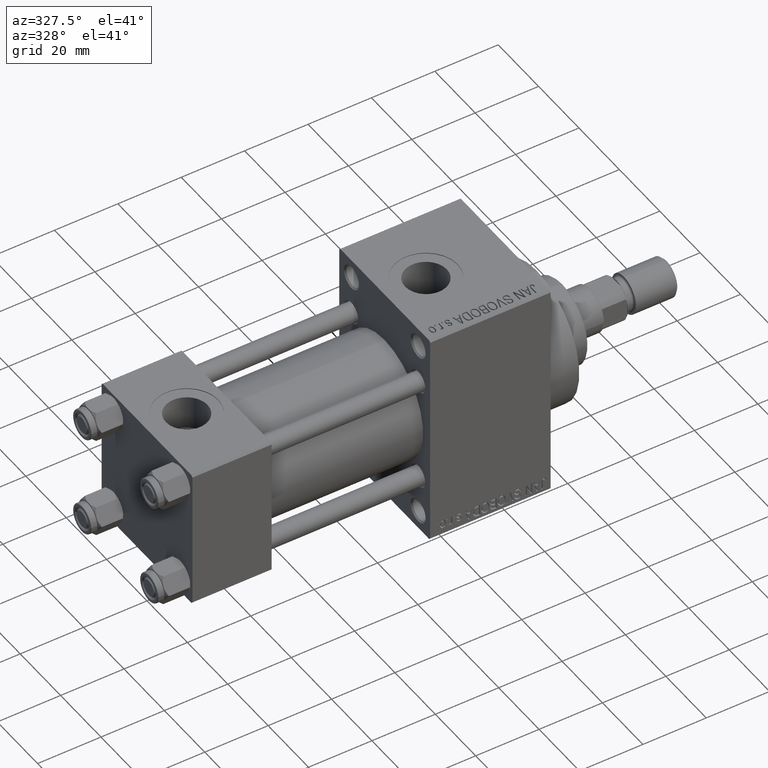
[diagram: clean part render]
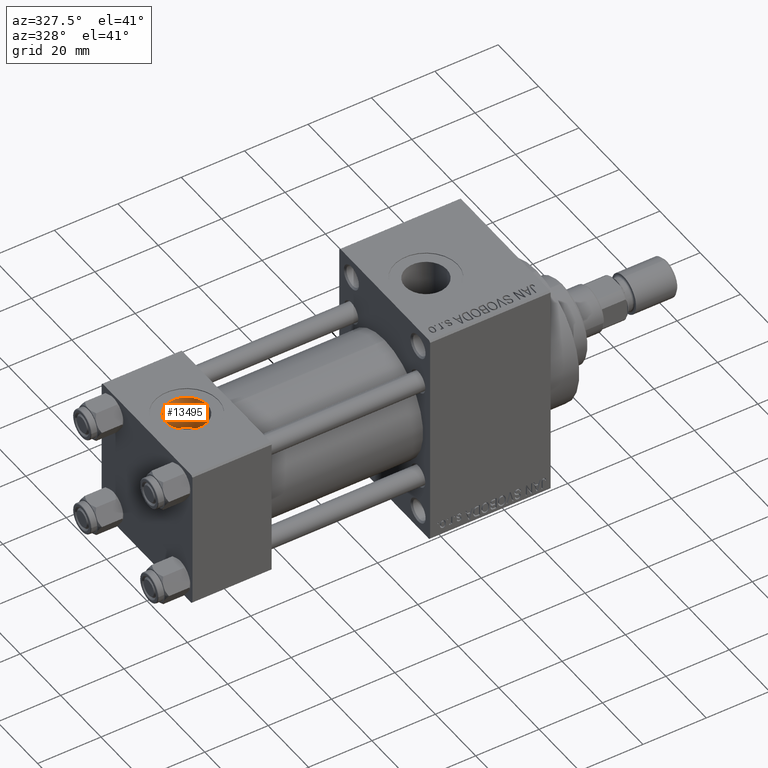
[diagram: same view with one face highlighted and labeled with its STEP entity id]
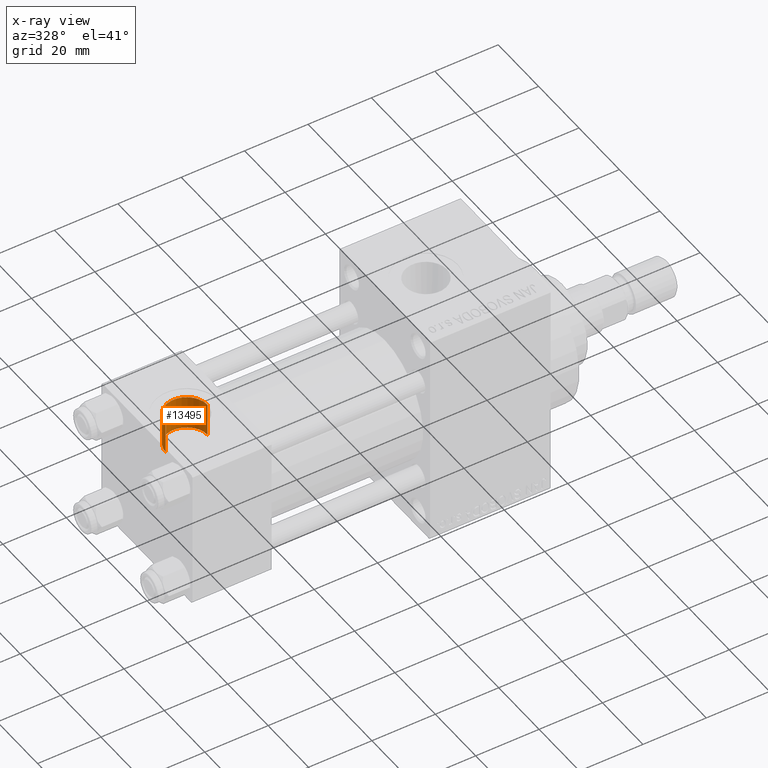
[diagram: x-ray of the same camera — body ghosted, the highlighted face saturated]
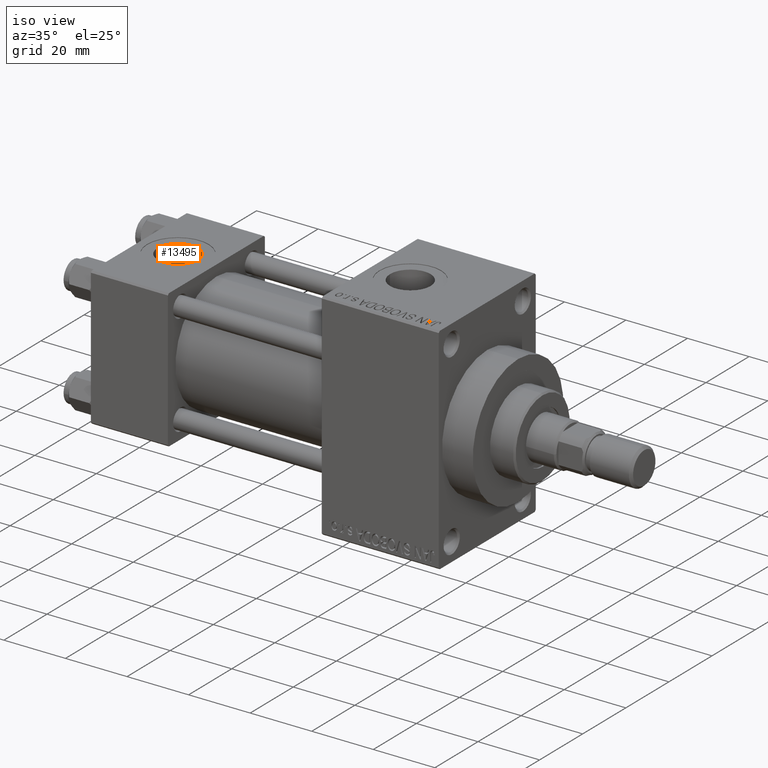
[diagram: same view with one face highlighted and labeled with its STEP entity id]
A machine part, auxiliary view. The second image highlights one B-rep face of the part: STEP entity #13495.
The next image is the same camera in x-ray: the body ghosted, the highlighted face saturated — about 0% of this face is hidden behind the body in this view.
A second angle (iso view) of the same face is appended — the face is thin or edge-on in the first view.
In plain terms, the highlighted cylindrical surface (edge-blend (fillet) strip) has radius 6.58 mm, axis along (0, 0, 1).
Its self-contained STEP definition (entity closure, byte-faithful):
#335 = DIRECTION ( 'NONE',  ( -0.000000000000000000, -0.000000000000000000, 1.000000000000000000 ) ) ;
#2559 = DIRECTION ( 'NONE',  ( -0.000000000000000000, -0.000000000000000000, -1.000000000000000000 ) ) ;
#3282 = DIRECTION ( 'NONE',  ( 1.000000000000000000, 0.000000000000000000, 0.000000000000000000 ) ) ;
#3398 = VERTEX_POINT ( 'NONE', #26870 ) ;
#6330 = CARTESIAN_POINT ( 'NONE',  ( 12.50000000000000000, -1.734723475976807094E-15, 11.66598726114649409 ) ) ;
#7382 = VERTEX_POINT ( 'NONE', #37924 ) ;
#7443 = VERTEX_POINT ( 'NONE', #28289 ) ;
#8065 = ORIENTED_EDGE ( 'NONE', *, *, #32889, .T. ) ;
#8501 = DIRECTION ( 'NONE',  ( -0.000000000000000000, -0.000000000000000000, 1.000000000000000000 ) ) ;
#8738 = ORIENTED_EDGE ( 'NONE', *, *, #26054, .T. ) ;
#9303 = CIRCLE ( 'NONE', #15729, 6.579999999999999183 ) ;
#10083 = CYLINDRICAL_SURFACE ( 'NONE', #29956, 6.579999999999999183 ) ;
#10237 = ORIENTED_EDGE ( 'NONE', *, *, #46598, .T. ) ;
#10331 = DIRECTION ( 'NONE',  ( -0.000000000000000000, -0.000000000000000000, 1.000000000000000000 ) ) ;
#10437 = AXIS2_PLACEMENT_3D ( 'NONE', #6330, #2559, #14110 ) ;
#13495 = ADVANCED_FACE ( 'NONE', ( #14852 ), #10083, .F. ) ;
#14110 = DIRECTION ( 'NONE',  ( 1.000000000000000000, 0.000000000000000000, 0.000000000000000000 ) ) ;
#14852 = FACE_OUTER_BOUND ( 'NONE', #44900, .T. ) ;
#15082 = DIRECTION ( 'NONE',  ( 0.000000000000000000, 0.000000000000000000, 1.000000000000000000 ) ) ;
#15729 = AXIS2_PLACEMENT_3D ( 'NONE', #49427, #15082, #3282 ) ;
#18506 = CARTESIAN_POINT ( 'NONE',  ( 5.920000000000002593, -9.289058821378490386E-16, 11.66598726114649409 ) ) ;
#19607 = VECTOR ( 'NONE', #8501, 1000.000000000000000 ) ;
#22097 = DIRECTION ( 'NONE',  ( 1.000000000000000000, 0.000000000000000000, 0.000000000000000000 ) ) ;
#22556 = EDGE_CURVE ( 'NONE', #23263, #3398, #30630, .T. ) ;
#23263 = VERTEX_POINT ( 'NONE', #18506 ) ;
#25623 = CIRCLE ( 'NONE', #10437, 6.579999999999999183 ) ;
#26054 = EDGE_CURVE ( 'NONE', #7443, #7382, #39057, .T. ) ;
#26345 = CARTESIAN_POINT ( 'NONE',  ( 12.50000000000000000, -1.734723475976807094E-15, 11.69999999999999929 ) ) ;
#26870 = CARTESIAN_POINT ( 'NONE',  ( 5.920000000000002593, -9.289058821378490386E-16, 22.30000000000000071 ) ) ;
#28289 = CARTESIAN_POINT ( 'NONE',  ( 19.07999999999999829, -1.734723475976807094E-15, 11.66598726114649409 ) ) ;
#29956 = AXIS2_PLACEMENT_3D ( 'NONE', #26345, #10331, #22097 ) ;
#30630 = LINE ( 'NONE', #41685, #34423 ) ;
#31285 = CARTESIAN_POINT ( 'NONE',  ( 19.07999999999999829, -1.734723475976807094E-15, 11.69999999999999929 ) ) ;
#32889 = EDGE_CURVE ( 'NONE', #7382, #3398, #9303, .T. ) ;
#34056 = ORIENTED_EDGE ( 'NONE', *, *, #22556, .F. ) ;
#34423 = VECTOR ( 'NONE', #335, 1000.000000000000000 ) ;
#37924 = CARTESIAN_POINT ( 'NONE',  ( 19.07999999999999829, -1.734723475976807094E-15, 22.30000000000000071 ) ) ;
#39057 = LINE ( 'NONE', #31285, #19607 ) ;
#41685 = CARTESIAN_POINT ( 'NONE',  ( 5.920000000000002593, -9.289058821378490386E-16, 11.69999999999999929 ) ) ;
#44900 = EDGE_LOOP ( 'NONE', ( #34056, #10237, #8738, #8065 ) ) ;
#46598 = EDGE_CURVE ( 'NONE', #23263, #7443, #25623, .T. ) ;
#49427 = CARTESIAN_POINT ( 'NONE',  ( 12.50000000000000000, -1.734723475976807094E-15, 22.30000000000000071 ) ) ;